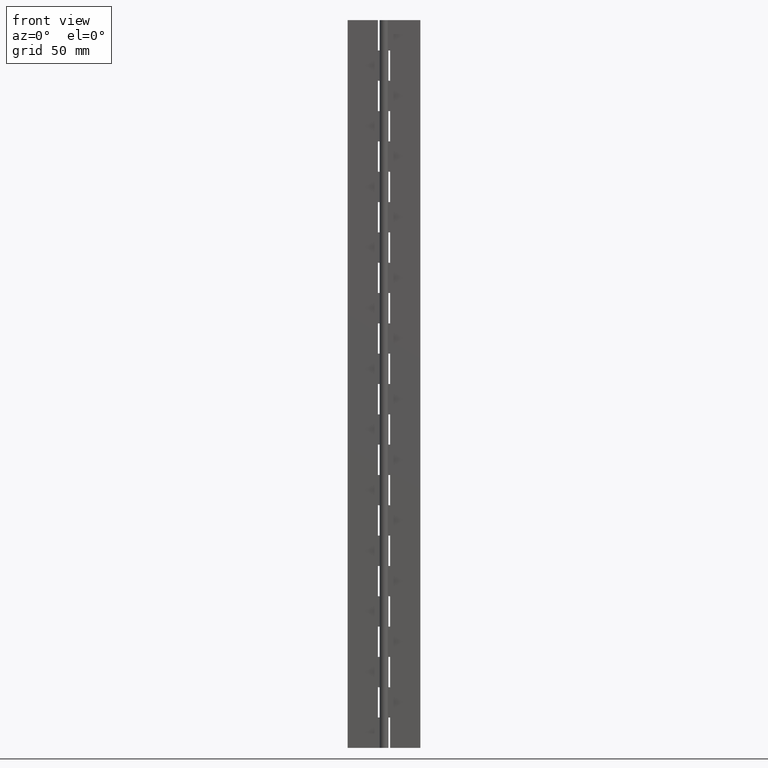
[diagram: clean part render]
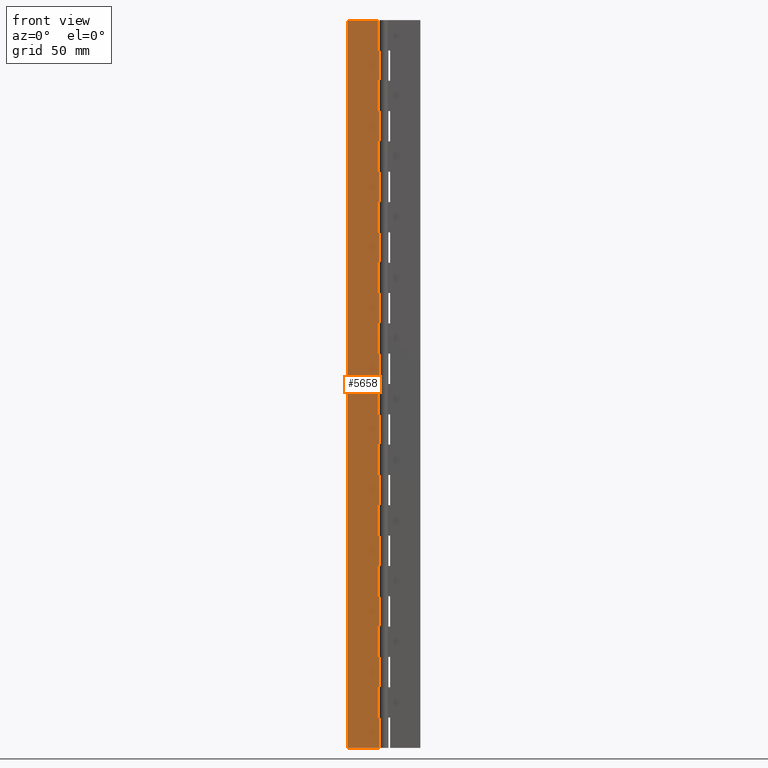
[diagram: same view with one face highlighted and labeled with its STEP entity id]
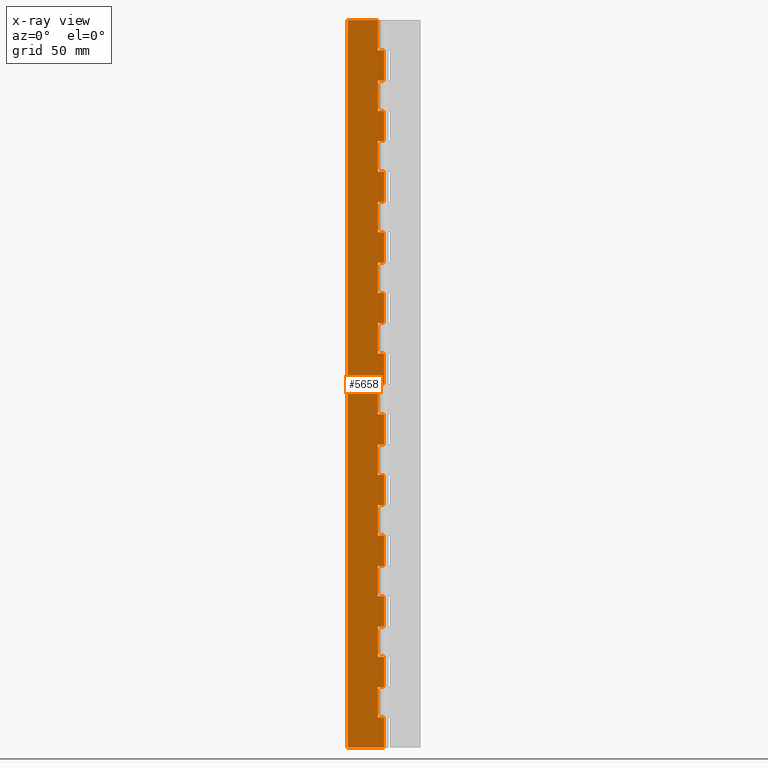
[diagram: x-ray of the same camera — body ghosted, the highlighted face saturated]
A machine part, front view. The second image highlights one B-rep face of the part: STEP entity #5658.
The next image is the same camera in x-ray: the body ghosted, the highlighted face saturated — about 0% of this face is hidden behind the body in this view.
In plain terms, the highlighted face is a freeform B-spline surface patch.
Its self-contained STEP definition (entity closure, byte-faithful):
#3406=CARTESIAN_POINT('',(-2.499999999999800,1.0,300.0));
#3407=VERTEX_POINT('',#3406);
#3408=CARTESIAN_POINT('',(-2.499999999999800,1.0,287.500000000000000));
#3409=VERTEX_POINT('',#3408);
#3410=CARTESIAN_POINT('',(-2.499999999999800,1.0,300.0));
#3411=CARTESIAN_POINT('',(-2.499999999999800,1.0,287.500000000000000));
#3412=QUASI_UNIFORM_CURVE('',1,(#3410,#3411),.UNSPECIFIED.,.F.,.U.);
#3413=EDGE_CURVE('',#3407,#3409,#3412,.T.);
#3471=CARTESIAN_POINT('',(6.123122E-017,1.0,287.500000000000000));
#3472=VERTEX_POINT('',#3471);
#3473=CARTESIAN_POINT('',(-2.499999999999800,1.0,287.500000000000000));
#3474=CARTESIAN_POINT('',(6.123122E-017,1.0,287.500000000000000));
#3475=QUASI_UNIFORM_CURVE('',1,(#3473,#3474),.UNSPECIFIED.,.F.,.U.);
#3476=EDGE_CURVE('',#3409,#3472,#3475,.T.);
#3542=CARTESIAN_POINT('',(6.123032E-017,1.0,275.0));
#3543=VERTEX_POINT('',#3542);
#3563=CARTESIAN_POINT('',(-2.499999999999800,1.0,275.0));
#3564=VERTEX_POINT('',#3563);
#3565=CARTESIAN_POINT('',(6.123032E-017,1.0,275.0));
#3566=CARTESIAN_POINT('',(-2.499999999999800,1.0,275.0));
#3567=QUASI_UNIFORM_CURVE('',1,(#3565,#3566),.UNSPECIFIED.,.F.,.U.);
#3568=EDGE_CURVE('',#3543,#3564,#3567,.T.);
#3590=CARTESIAN_POINT('',(-2.499999999999800,1.0,262.500000000000000));
#3591=VERTEX_POINT('',#3590);
#3592=CARTESIAN_POINT('',(-2.499999999999800,1.0,275.0));
#3593=CARTESIAN_POINT('',(-2.499999999999800,1.0,262.500000000000000));
#3594=QUASI_UNIFORM_CURVE('',1,(#3592,#3593),.UNSPECIFIED.,.F.,.U.);
#3595=EDGE_CURVE('',#3564,#3591,#3594,.T.);
#3647=CARTESIAN_POINT('',(6.123122E-017,1.0,262.500000000000000));
#3648=VERTEX_POINT('',#3647);
#3649=CARTESIAN_POINT('',(-2.499999999999800,1.0,262.500000000000000));
#3650=CARTESIAN_POINT('',(6.123122E-017,1.0,262.500000000000000));
#3651=QUASI_UNIFORM_CURVE('',1,(#3649,#3650),.UNSPECIFIED.,.F.,.U.);
#3652=EDGE_CURVE('',#3591,#3648,#3651,.T.);
#3718=CARTESIAN_POINT('',(6.123032E-017,1.0,250.0));
#3719=VERTEX_POINT('',#3718);
#3739=CARTESIAN_POINT('',(-2.499999999999800,1.0,250.0));
#3740=VERTEX_POINT('',#3739);
#3741=CARTESIAN_POINT('',(6.123032E-017,1.0,250.0));
#3742=CARTESIAN_POINT('',(-2.499999999999800,1.0,250.0));
#3743=QUASI_UNIFORM_CURVE('',1,(#3741,#3742),.UNSPECIFIED.,.F.,.U.);
#3744=EDGE_CURVE('',#3719,#3740,#3743,.T.);
#3766=CARTESIAN_POINT('',(-2.499999999999800,1.0,237.500000000000000));
#3767=VERTEX_POINT('',#3766);
#3768=CARTESIAN_POINT('',(-2.499999999999800,1.0,250.0));
#3769=CARTESIAN_POINT('',(-2.499999999999800,1.0,237.500000000000000));
#3770=QUASI_UNIFORM_CURVE('',1,(#3768,#3769),.UNSPECIFIED.,.F.,.U.);
#3771=EDGE_CURVE('',#3740,#3767,#3770,.T.);
#3823=CARTESIAN_POINT('',(6.123122E-017,1.0,237.500000000000000));
#3824=VERTEX_POINT('',#3823);
#3825=CARTESIAN_POINT('',(-2.499999999999800,1.0,237.500000000000000));
#3826=CARTESIAN_POINT('',(6.123122E-017,1.0,237.500000000000000));
#3827=QUASI_UNIFORM_CURVE('',1,(#3825,#3826),.UNSPECIFIED.,.F.,.U.);
#3828=EDGE_CURVE('',#3767,#3824,#3827,.T.);
#3894=CARTESIAN_POINT('',(6.123032E-017,1.0,225.0));
#3895=VERTEX_POINT('',#3894);
#3915=CARTESIAN_POINT('',(-2.499999999999800,1.0,225.0));
#3916=VERTEX_POINT('',#3915);
#3917=CARTESIAN_POINT('',(6.123032E-017,1.0,225.0));
#3918=CARTESIAN_POINT('',(-2.499999999999800,1.0,225.0));
#3919=QUASI_UNIFORM_CURVE('',1,(#3917,#3918),.UNSPECIFIED.,.F.,.U.);
#3920=EDGE_CURVE('',#3895,#3916,#3919,.T.);
#3942=CARTESIAN_POINT('',(-2.499999999999800,1.0,212.500000000000000));
#3943=VERTEX_POINT('',#3942);
#3944=CARTESIAN_POINT('',(-2.499999999999800,1.0,225.0));
#3945=CARTESIAN_POINT('',(-2.499999999999800,1.0,212.500000000000000));
#3946=QUASI_UNIFORM_CURVE('',1,(#3944,#3945),.UNSPECIFIED.,.F.,.U.);
#3947=EDGE_CURVE('',#3916,#3943,#3946,.T.);
#3999=CARTESIAN_POINT('',(6.123122E-017,1.0,212.500000000000000));
#4000=VERTEX_POINT('',#3999);
#4001=CARTESIAN_POINT('',(-2.499999999999800,1.0,212.500000000000000));
#4002=CARTESIAN_POINT('',(6.123122E-017,1.0,212.500000000000000));
#4003=QUASI_UNIFORM_CURVE('',1,(#4001,#4002),.UNSPECIFIED.,.F.,.U.);
#4004=EDGE_CURVE('',#3943,#4000,#4003,.T.);
#4070=CARTESIAN_POINT('',(6.123032E-017,1.0,200.0));
#4071=VERTEX_POINT('',#4070);
#4091=CARTESIAN_POINT('',(-2.499999999999800,1.0,200.0));
#4092=VERTEX_POINT('',#4091);
#4093=CARTESIAN_POINT('',(6.123032E-017,1.0,200.0));
#4094=CARTESIAN_POINT('',(-2.499999999999800,1.0,200.0));
#4095=QUASI_UNIFORM_CURVE('',1,(#4093,#4094),.UNSPECIFIED.,.F.,.U.);
#4096=EDGE_CURVE('',#4071,#4092,#4095,.T.);
#4118=CARTESIAN_POINT('',(-2.499999999999800,1.0,187.500000000000000));
#4119=VERTEX_POINT('',#4118);
#4120=CARTESIAN_POINT('',(-2.499999999999800,1.0,200.0));
#4121=CARTESIAN_POINT('',(-2.499999999999800,1.0,187.500000000000000));
#4122=QUASI_UNIFORM_CURVE('',1,(#4120,#4121),.UNSPECIFIED.,.F.,.U.);
#4123=EDGE_CURVE('',#4092,#4119,#4122,.T.);
#4175=CARTESIAN_POINT('',(6.123122E-017,1.0,187.500000000000000));
#4176=VERTEX_POINT('',#4175);
#4177=CARTESIAN_POINT('',(-2.499999999999800,1.0,187.500000000000000));
#4178=CARTESIAN_POINT('',(6.123122E-017,1.0,187.500000000000000));
#4179=QUASI_UNIFORM_CURVE('',1,(#4177,#4178),.UNSPECIFIED.,.F.,.U.);
#4180=EDGE_CURVE('',#4119,#4176,#4179,.T.);
#4246=CARTESIAN_POINT('',(6.123032E-017,1.0,175.0));
#4247=VERTEX_POINT('',#4246);
#4267=CARTESIAN_POINT('',(-2.499999999999800,1.0,175.0));
#4268=VERTEX_POINT('',#4267);
#4269=CARTESIAN_POINT('',(6.123032E-017,1.0,175.0));
#4270=CARTESIAN_POINT('',(-2.499999999999800,1.0,175.0));
#4271=QUASI_UNIFORM_CURVE('',1,(#4269,#4270),.UNSPECIFIED.,.F.,.U.);
#4272=EDGE_CURVE('',#4247,#4268,#4271,.T.);
#4294=CARTESIAN_POINT('',(-2.499999999999800,1.0,162.500000000000000));
#4295=VERTEX_POINT('',#4294);
#4296=CARTESIAN_POINT('',(-2.499999999999800,1.0,175.0));
#4297=CARTESIAN_POINT('',(-2.499999999999800,1.0,162.500000000000000));
#4298=QUASI_UNIFORM_CURVE('',1,(#4296,#4297),.UNSPECIFIED.,.F.,.U.);
#4299=EDGE_CURVE('',#4268,#4295,#4298,.T.);
#4351=CARTESIAN_POINT('',(6.123122E-017,1.0,162.500000000000000));
#4352=VERTEX_POINT('',#4351);
#4353=CARTESIAN_POINT('',(-2.499999999999800,1.0,162.500000000000000));
#4354=CARTESIAN_POINT('',(6.123122E-017,1.0,162.500000000000000));
#4355=QUASI_UNIFORM_CURVE('',1,(#4353,#4354),.UNSPECIFIED.,.F.,.U.);
#4356=EDGE_CURVE('',#4295,#4352,#4355,.T.);
#4422=CARTESIAN_POINT('',(6.123032E-017,1.0,150.0));
#4423=VERTEX_POINT('',#4422);
#4443=CARTESIAN_POINT('',(-2.499999999999800,1.0,150.0));
#4444=VERTEX_POINT('',#4443);
#4445=CARTESIAN_POINT('',(6.123032E-017,1.0,150.0));
#4446=CARTESIAN_POINT('',(-2.499999999999800,1.0,150.0));
#4447=QUASI_UNIFORM_CURVE('',1,(#4445,#4446),.UNSPECIFIED.,.F.,.U.);
#4448=EDGE_CURVE('',#4423,#4444,#4447,.T.);
#4470=CARTESIAN_POINT('',(-2.499999999999800,1.0,137.500000000000000));
#4471=VERTEX_POINT('',#4470);
#4472=CARTESIAN_POINT('',(-2.499999999999800,1.0,150.0));
#4473=CARTESIAN_POINT('',(-2.499999999999800,1.0,137.500000000000000));
#4474=QUASI_UNIFORM_CURVE('',1,(#4472,#4473),.UNSPECIFIED.,.F.,.U.);
#4475=EDGE_CURVE('',#4444,#4471,#4474,.T.);
#4527=CARTESIAN_POINT('',(6.123122E-017,1.0,137.500000000000000));
#4528=VERTEX_POINT('',#4527);
#4529=CARTESIAN_POINT('',(-2.499999999999800,1.0,137.500000000000000));
#4530=CARTESIAN_POINT('',(6.123122E-017,1.0,137.500000000000000));
#4531=QUASI_UNIFORM_CURVE('',1,(#4529,#4530),.UNSPECIFIED.,.F.,.U.);
#4532=EDGE_CURVE('',#4471,#4528,#4531,.T.);
#4598=CARTESIAN_POINT('',(6.123032E-017,1.0,125.0));
#4599=VERTEX_POINT('',#4598);
#4619=CARTESIAN_POINT('',(-2.499999999999800,1.0,125.0));
#4620=VERTEX_POINT('',#4619);
#4621=CARTESIAN_POINT('',(6.123032E-017,1.0,125.0));
#4622=CARTESIAN_POINT('',(-2.499999999999800,1.0,125.0));
#4623=QUASI_UNIFORM_CURVE('',1,(#4621,#4622),.UNSPECIFIED.,.F.,.U.);
#4624=EDGE_CURVE('',#4599,#4620,#4623,.T.);
#4646=CARTESIAN_POINT('',(-2.499999999999800,1.0,112.500000000000000));
#4647=VERTEX_POINT('',#4646);
#4648=CARTESIAN_POINT('',(-2.499999999999800,1.0,125.0));
#4649=CARTESIAN_POINT('',(-2.499999999999800,1.0,112.500000000000000));
#4650=QUASI_UNIFORM_CURVE('',1,(#4648,#4649),.UNSPECIFIED.,.F.,.U.);
#4651=EDGE_CURVE('',#4620,#4647,#4650,.T.);
#4703=CARTESIAN_POINT('',(6.123122E-017,1.0,112.500000000000000));
#4704=VERTEX_POINT('',#4703);
#4705=CARTESIAN_POINT('',(-2.499999999999800,1.0,112.500000000000000));
#4706=CARTESIAN_POINT('',(6.123122E-017,1.0,112.500000000000000));
#4707=QUASI_UNIFORM_CURVE('',1,(#4705,#4706),.UNSPECIFIED.,.F.,.U.);
#4708=EDGE_CURVE('',#4647,#4704,#4707,.T.);
#4774=CARTESIAN_POINT('',(6.123032E-017,1.0,100.0));
#4775=VERTEX_POINT('',#4774);
#4795=CARTESIAN_POINT('',(-2.499999999999800,1.0,100.0));
#4796=VERTEX_POINT('',#4795);
#4797=CARTESIAN_POINT('',(6.123032E-017,1.0,100.0));
#4798=CARTESIAN_POINT('',(-2.499999999999800,1.0,100.0));
#4799=QUASI_UNIFORM_CURVE('',1,(#4797,#4798),.UNSPECIFIED.,.F.,.U.);
#4800=EDGE_CURVE('',#4775,#4796,#4799,.T.);
#4822=CARTESIAN_POINT('',(-2.499999999999800,1.0,87.500000000000000));
#4823=VERTEX_POINT('',#4822);
#4824=CARTESIAN_POINT('',(-2.499999999999800,1.0,100.0));
#4825=CARTESIAN_POINT('',(-2.499999999999800,1.0,87.500000000000000));
#4826=QUASI_UNIFORM_CURVE('',1,(#4824,#4825),.UNSPECIFIED.,.F.,.U.);
#4827=EDGE_CURVE('',#4796,#4823,#4826,.T.);
#4879=CARTESIAN_POINT('',(6.123122E-017,1.0,87.500000000000000));
#4880=VERTEX_POINT('',#4879);
#4881=CARTESIAN_POINT('',(-2.499999999999800,1.0,87.500000000000000));
#4882=CARTESIAN_POINT('',(6.123122E-017,1.0,87.500000000000000));
#4883=QUASI_UNIFORM_CURVE('',1,(#4881,#4882),.UNSPECIFIED.,.F.,.U.);
#4884=EDGE_CURVE('',#4823,#4880,#4883,.T.);
#4950=CARTESIAN_POINT('',(6.123032E-017,1.0,75.0));
#4951=VERTEX_POINT('',#4950);
#4971=CARTESIAN_POINT('',(-2.499999999999800,1.0,75.0));
#4972=VERTEX_POINT('',#4971);
#4973=CARTESIAN_POINT('',(6.123032E-017,1.0,75.0));
#4974=CARTESIAN_POINT('',(-2.499999999999800,1.0,75.0));
#4975=QUASI_UNIFORM_CURVE('',1,(#4973,#4974),.UNSPECIFIED.,.F.,.U.);
#4976=EDGE_CURVE('',#4951,#4972,#4975,.T.);
#4998=CARTESIAN_POINT('',(-2.499999999999800,1.0,62.500000000000000));
#4999=VERTEX_POINT('',#4998);
#5000=CARTESIAN_POINT('',(-2.499999999999800,1.0,75.0));
#5001=CARTESIAN_POINT('',(-2.499999999999800,1.0,62.500000000000000));
#5002=QUASI_UNIFORM_CURVE('',1,(#5000,#5001),.UNSPECIFIED.,.F.,.U.);
#5003=EDGE_CURVE('',#4972,#4999,#5002,.T.);
#5055=CARTESIAN_POINT('',(6.123122E-017,1.0,62.500000000000000));
#5056=VERTEX_POINT('',#5055);
#5057=CARTESIAN_POINT('',(-2.499999999999800,1.0,62.500000000000000));
#5058=CARTESIAN_POINT('',(6.123122E-017,1.0,62.500000000000000));
#5059=QUASI_UNIFORM_CURVE('',1,(#5057,#5058),.UNSPECIFIED.,.F.,.U.);
#5060=EDGE_CURVE('',#4999,#5056,#5059,.T.);
#5126=CARTESIAN_POINT('',(6.123032E-017,1.0,50.0));
#5127=VERTEX_POINT('',#5126);
#5147=CARTESIAN_POINT('',(-2.499999999999800,1.0,50.0));
#5148=VERTEX_POINT('',#5147);
#5149=CARTESIAN_POINT('',(6.123032E-017,1.0,50.0));
#5150=CARTESIAN_POINT('',(-2.499999999999800,1.0,50.0));
#5151=QUASI_UNIFORM_CURVE('',1,(#5149,#5150),.UNSPECIFIED.,.F.,.U.);
#5152=EDGE_CURVE('',#5127,#5148,#5151,.T.);
#5174=CARTESIAN_POINT('',(-2.499999999999800,1.0,37.500000000000000));
#5175=VERTEX_POINT('',#5174);
#5176=CARTESIAN_POINT('',(-2.499999999999800,1.0,50.0));
#5177=CARTESIAN_POINT('',(-2.499999999999800,1.0,37.500000000000000));
#5178=QUASI_UNIFORM_CURVE('',1,(#5176,#5177),.UNSPECIFIED.,.F.,.U.);
#5179=EDGE_CURVE('',#5148,#5175,#5178,.T.);
#5231=CARTESIAN_POINT('',(6.123122E-017,1.0,37.500000000000000));
#5232=VERTEX_POINT('',#5231);
#5233=CARTESIAN_POINT('',(-2.499999999999800,1.0,37.500000000000000));
#5234=CARTESIAN_POINT('',(6.123122E-017,1.0,37.500000000000000));
#5235=QUASI_UNIFORM_CURVE('',1,(#5233,#5234),.UNSPECIFIED.,.F.,.U.);
#5236=EDGE_CURVE('',#5175,#5232,#5235,.T.);
#5302=CARTESIAN_POINT('',(6.123032E-017,1.0,25.0));
#5303=VERTEX_POINT('',#5302);
#5323=CARTESIAN_POINT('',(-2.499999999999800,1.0,25.0));
#5324=VERTEX_POINT('',#5323);
#5325=CARTESIAN_POINT('',(6.123032E-017,1.0,25.0));
#5326=CARTESIAN_POINT('',(-2.499999999999800,1.0,25.0));
#5327=QUASI_UNIFORM_CURVE('',1,(#5325,#5326),.UNSPECIFIED.,.F.,.U.);
#5328=EDGE_CURVE('',#5303,#5324,#5327,.T.);
#5350=CARTESIAN_POINT('',(-2.499999999999800,1.0,12.500000000000000));
#5351=VERTEX_POINT('',#5350);
#5352=CARTESIAN_POINT('',(-2.499999999999800,1.0,25.0));
#5353=CARTESIAN_POINT('',(-2.499999999999800,1.0,12.500000000000000));
#5354=QUASI_UNIFORM_CURVE('',1,(#5352,#5353),.UNSPECIFIED.,.F.,.U.);
#5355=EDGE_CURVE('',#5324,#5351,#5354,.T.);
#5407=CARTESIAN_POINT('',(6.123122E-017,1.0,12.500000000000000));
#5408=VERTEX_POINT('',#5407);
#5409=CARTESIAN_POINT('',(-2.499999999999800,1.0,12.500000000000000));
#5410=CARTESIAN_POINT('',(6.123122E-017,1.0,12.500000000000000));
#5411=QUASI_UNIFORM_CURVE('',1,(#5409,#5410),.UNSPECIFIED.,.F.,.U.);
#5412=EDGE_CURVE('',#5351,#5408,#5411,.T.);
#5448=CARTESIAN_POINT('',(-14.999999999999799,1.0,0.0));
#5449=VERTEX_POINT('',#5448);
#5492=CARTESIAN_POINT('',(6.123032E-017,1.0,0.0));
#5493=VERTEX_POINT('',#5492);
#5513=CARTESIAN_POINT('',(6.123032E-017,1.0,0.0));
#5514=CARTESIAN_POINT('',(-14.999999999999799,1.0,0.0));
#5515=QUASI_UNIFORM_CURVE('',1,(#5513,#5514),.UNSPECIFIED.,.F.,.U.);
#5516=EDGE_CURVE('',#5493,#5449,#5515,.T.);
#5526=CARTESIAN_POINT('',(-14.999999999999799,1.0,300.0));
#5527=VERTEX_POINT('',#5526);
#5528=CARTESIAN_POINT('',(-2.499999999999800,1.0,300.0));
#5529=CARTESIAN_POINT('',(-14.999999999999799,1.0,300.0));
#5530=QUASI_UNIFORM_CURVE('',1,(#5528,#5529),.UNSPECIFIED.,.F.,.U.);
#5531=EDGE_CURVE('',#3407,#5527,#5530,.T.);
#5549=CARTESIAN_POINT('',(-15.749249970926879,1.0,314.984999418541800));
#5550=CARTESIAN_POINT('',(-15.749249970926879,1.0,-14.985007465168829));
#5551=CARTESIAN_POINT('',(0.749250373258431,1.0,314.984999418541800));
#5552=CARTESIAN_POINT('',(0.749250373258431,1.0,-14.985007465168829));
#5553=B_SPLINE_SURFACE_WITH_KNOTS('',1,1,((#5549,#5551),(#5550,#5552)),.UNSPECIFIED.,.F.,.F.,.U.,(2,2),(2,2),(0.0,329.970006883710710),(0.0,16.498500344185310),.UNSPECIFIED.);
#5554=ORIENTED_EDGE('',*,*,#3476,.F.);
#5555=ORIENTED_EDGE('',*,*,#3413,.F.);
#5556=ORIENTED_EDGE('',*,*,#5531,.T.);
#5557=CARTESIAN_POINT('',(-14.999999999999799,1.0,300.0));
#5558=CARTESIAN_POINT('',(-14.999999999999799,1.0,0.0));
#5559=QUASI_UNIFORM_CURVE('',1,(#5557,#5558),.UNSPECIFIED.,.F.,.U.);
#5560=EDGE_CURVE('',#5527,#5449,#5559,.T.);
#5561=ORIENTED_EDGE('',*,*,#5560,.T.);
#5562=ORIENTED_EDGE('',*,*,#5516,.F.);
#5563=CARTESIAN_POINT('',(6.123122E-017,1.0,12.500000000000000));
#5564=CARTESIAN_POINT('',(6.123032E-017,1.0,0.0));
#5565=QUASI_UNIFORM_CURVE('',1,(#5563,#5564),.UNSPECIFIED.,.F.,.U.);
#5566=EDGE_CURVE('',#5408,#5493,#5565,.T.);
#5567=ORIENTED_EDGE('',*,*,#5566,.F.);
#5568=ORIENTED_EDGE('',*,*,#5412,.F.);
#5569=ORIENTED_EDGE('',*,*,#5355,.F.);
#5570=ORIENTED_EDGE('',*,*,#5328,.F.);
#5571=CARTESIAN_POINT('',(6.123122E-017,1.0,37.500000000000000));
#5572=CARTESIAN_POINT('',(6.123032E-017,1.0,25.0));
#5573=QUASI_UNIFORM_CURVE('',1,(#5571,#5572),.UNSPECIFIED.,.F.,.U.);
#5574=EDGE_CURVE('',#5232,#5303,#5573,.T.);
#5575=ORIENTED_EDGE('',*,*,#5574,.F.);
#5576=ORIENTED_EDGE('',*,*,#5236,.F.);
#5577=ORIENTED_EDGE('',*,*,#5179,.F.);
#5578=ORIENTED_EDGE('',*,*,#5152,.F.);
#5579=CARTESIAN_POINT('',(6.123122E-017,1.0,62.500000000000000));
#5580=CARTESIAN_POINT('',(6.123032E-017,1.0,50.0));
#5581=QUASI_UNIFORM_CURVE('',1,(#5579,#5580),.UNSPECIFIED.,.F.,.U.);
#5582=EDGE_CURVE('',#5056,#5127,#5581,.T.);
#5583=ORIENTED_EDGE('',*,*,#5582,.F.);
#5584=ORIENTED_EDGE('',*,*,#5060,.F.);
#5585=ORIENTED_EDGE('',*,*,#5003,.F.);
#5586=ORIENTED_EDGE('',*,*,#4976,.F.);
#5587=CARTESIAN_POINT('',(6.123122E-017,1.0,87.500000000000000));
#5588=CARTESIAN_POINT('',(6.123032E-017,1.0,75.0));
#5589=QUASI_UNIFORM_CURVE('',1,(#5587,#5588),.UNSPECIFIED.,.F.,.U.);
#5590=EDGE_CURVE('',#4880,#4951,#5589,.T.);
#5591=ORIENTED_EDGE('',*,*,#5590,.F.);
#5592=ORIENTED_EDGE('',*,*,#4884,.F.);
#5593=ORIENTED_EDGE('',*,*,#4827,.F.);
#5594=ORIENTED_EDGE('',*,*,#4800,.F.);
#5595=CARTESIAN_POINT('',(6.123122E-017,1.0,112.500000000000000));
#5596=CARTESIAN_POINT('',(6.123032E-017,1.0,100.0));
#5597=QUASI_UNIFORM_CURVE('',1,(#5595,#5596),.UNSPECIFIED.,.F.,.U.);
#5598=EDGE_CURVE('',#4704,#4775,#5597,.T.);
#5599=ORIENTED_EDGE('',*,*,#5598,.F.);
#5600=ORIENTED_EDGE('',*,*,#4708,.F.);
#5601=ORIENTED_EDGE('',*,*,#4651,.F.);
#5602=ORIENTED_EDGE('',*,*,#4624,.F.);
#5603=CARTESIAN_POINT('',(6.123122E-017,1.0,137.500000000000000));
#5604=CARTESIAN_POINT('',(6.123032E-017,1.0,125.0));
#5605=QUASI_UNIFORM_CURVE('',1,(#5603,#5604),.UNSPECIFIED.,.F.,.U.);
#5606=EDGE_CURVE('',#4528,#4599,#5605,.T.);
#5607=ORIENTED_EDGE('',*,*,#5606,.F.);
#5608=ORIENTED_EDGE('',*,*,#4532,.F.);
#5609=ORIENTED_EDGE('',*,*,#4475,.F.);
#5610=ORIENTED_EDGE('',*,*,#4448,.F.);
#5611=CARTESIAN_POINT('',(6.123122E-017,1.0,162.500000000000000));
#5612=CARTESIAN_POINT('',(6.123032E-017,1.0,150.0));
#5613=QUASI_UNIFORM_CURVE('',1,(#5611,#5612),.UNSPECIFIED.,.F.,.U.);
#5614=EDGE_CURVE('',#4352,#4423,#5613,.T.);
#5615=ORIENTED_EDGE('',*,*,#5614,.F.);
#5616=ORIENTED_EDGE('',*,*,#4356,.F.);
#5617=ORIENTED_EDGE('',*,*,#4299,.F.);
#5618=ORIENTED_EDGE('',*,*,#4272,.F.);
#5619=CARTESIAN_POINT('',(6.123122E-017,1.0,187.500000000000000));
#5620=CARTESIAN_POINT('',(6.123032E-017,1.0,175.0));
#5621=QUASI_UNIFORM_CURVE('',1,(#5619,#5620),.UNSPECIFIED.,.F.,.U.);
#5622=EDGE_CURVE('',#4176,#4247,#5621,.T.);
#5623=ORIENTED_EDGE('',*,*,#5622,.F.);
#5624=ORIENTED_EDGE('',*,*,#4180,.F.);
#5625=ORIENTED_EDGE('',*,*,#4123,.F.);
#5626=ORIENTED_EDGE('',*,*,#4096,.F.);
#5627=CARTESIAN_POINT('',(6.123122E-017,1.0,212.500000000000000));
#5628=CARTESIAN_POINT('',(6.123032E-017,1.0,200.0));
#5629=QUASI_UNIFORM_CURVE('',1,(#5627,#5628),.UNSPECIFIED.,.F.,.U.);
#5630=EDGE_CURVE('',#4000,#4071,#5629,.T.);
#5631=ORIENTED_EDGE('',*,*,#5630,.F.);
#5632=ORIENTED_EDGE('',*,*,#4004,.F.);
#5633=ORIENTED_EDGE('',*,*,#3947,.F.);
#5634=ORIENTED_EDGE('',*,*,#3920,.F.);
#5635=CARTESIAN_POINT('',(6.123122E-017,1.0,237.500000000000000));
#5636=CARTESIAN_POINT('',(6.123032E-017,1.0,225.0));
#5637=QUASI_UNIFORM_CURVE('',1,(#5635,#5636),.UNSPECIFIED.,.F.,.U.);
#5638=EDGE_CURVE('',#3824,#3895,#5637,.T.);
#5639=ORIENTED_EDGE('',*,*,#5638,.F.);
#5640=ORIENTED_EDGE('',*,*,#3828,.F.);
#5641=ORIENTED_EDGE('',*,*,#3771,.F.);
#5642=ORIENTED_EDGE('',*,*,#3744,.F.);
#5643=CARTESIAN_POINT('',(6.123122E-017,1.0,262.500000000000000));
#5644=CARTESIAN_POINT('',(6.123032E-017,1.0,250.0));
#5645=QUASI_UNIFORM_CURVE('',1,(#5643,#5644),.UNSPECIFIED.,.F.,.U.);
#5646=EDGE_CURVE('',#3648,#3719,#5645,.T.);
#5647=ORIENTED_EDGE('',*,*,#5646,.F.);
#5648=ORIENTED_EDGE('',*,*,#3652,.F.);
#5649=ORIENTED_EDGE('',*,*,#3595,.F.);
#5650=ORIENTED_EDGE('',*,*,#3568,.F.);
#5651=CARTESIAN_POINT('',(6.123122E-017,1.0,287.500000000000000));
#5652=CARTESIAN_POINT('',(6.123032E-017,1.0,275.0));
#5653=QUASI_UNIFORM_CURVE('',1,(#5651,#5652),.UNSPECIFIED.,.F.,.U.);
#5654=EDGE_CURVE('',#3472,#3543,#5653,.T.);
#5655=ORIENTED_EDGE('',*,*,#5654,.F.);
#5656=EDGE_LOOP('',(#5554,#5555,#5556,#5561,#5562,#5567,#5568,#5569,#5570,#5575,#5576,#5577,#5578,#5583,#5584,#5585,#5586,#5591,#5592,#5593,#5594,#5599,#5600,#5601,#5602,#5607,#5608,#5609,#5610,#5615,#5616,#5617,#5618,#5623,#5624,#5625,#5626,#5631,#5632,#5633,#5634,#5639,#5640,#5641,#5642,#5647,#5648,#5649,#5650,#5655));
#5657=FACE_OUTER_BOUND('',#5656,.T.);
#5658=ADVANCED_FACE('',(#5657),#5553,.T.);